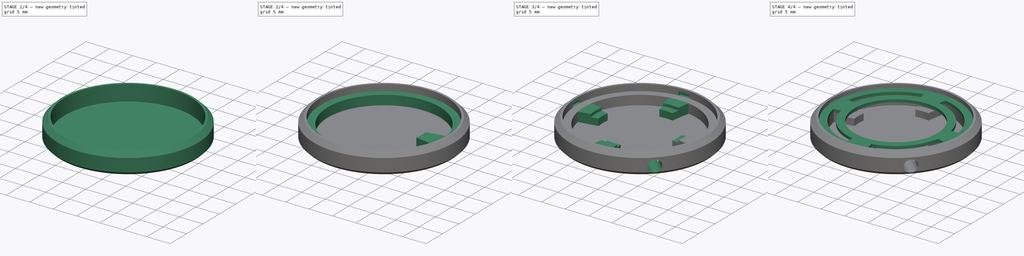
[diagram: build sequence overview — one tinted view per stage of 4, left to right]
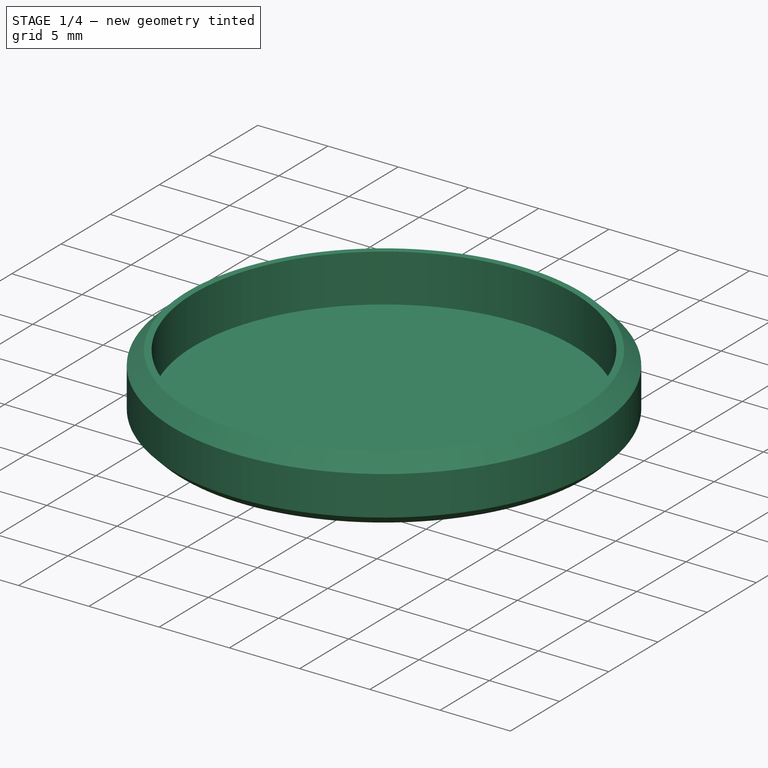
[diagram: stage 1 of 4 — iso view after this stage's code; geometry added in this stage tinted green]
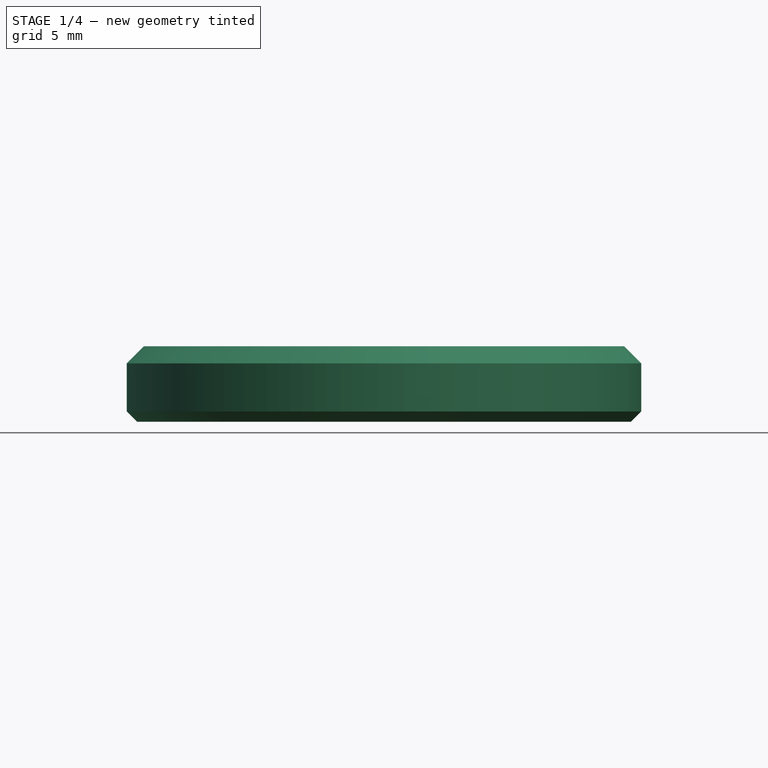
[diagram: stage 1 of 4 — front view after this stage's code; geometry added in this stage tinted green]
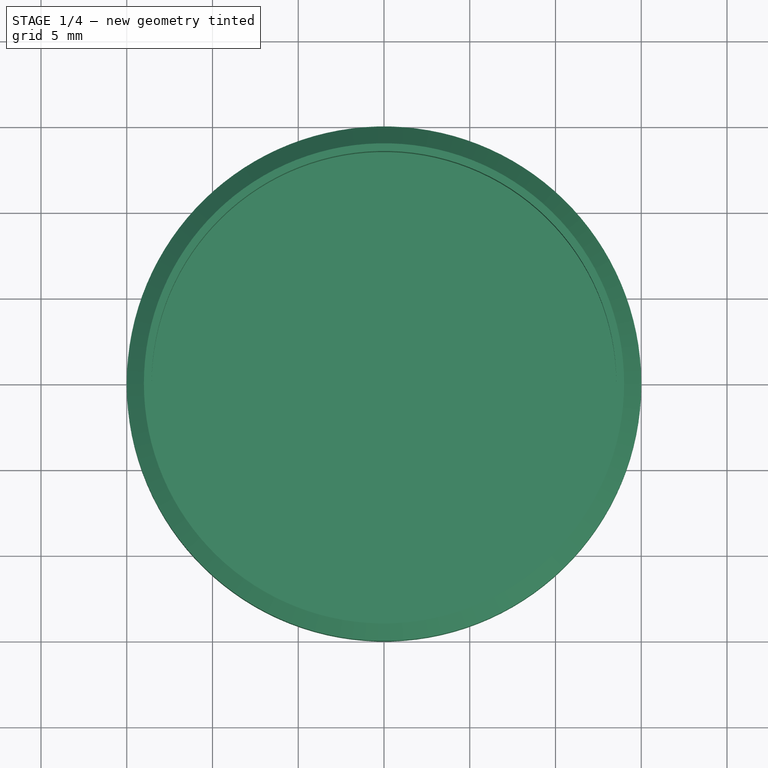
[diagram: stage 1 of 4 — top view after this stage's code; geometry added in this stage tinted green]
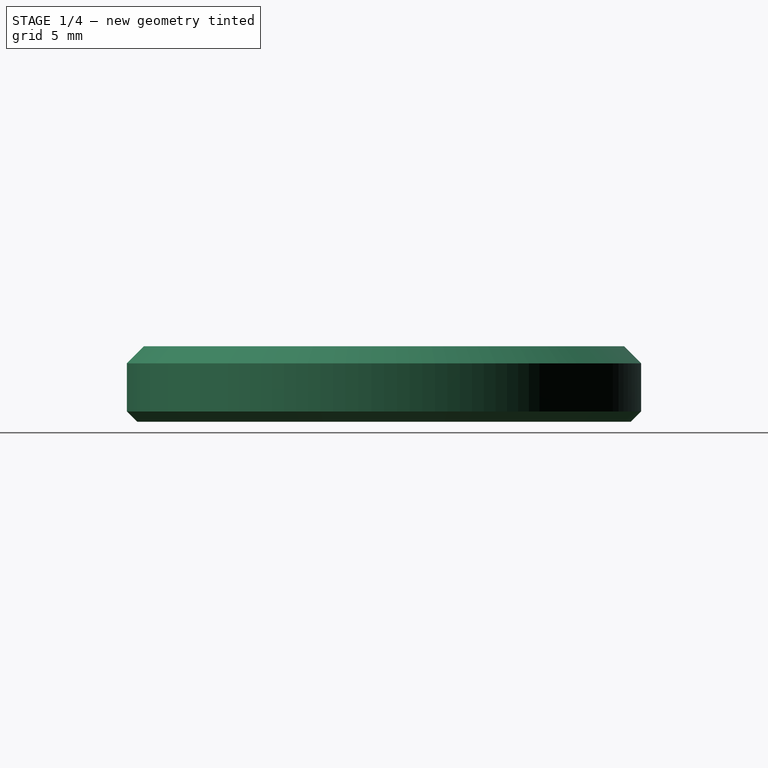
[diagram: stage 1 of 4 — right view after this stage's code; geometry added in this stage tinted green]
FCSTD DOCUMENT  (FreeCAD 0.20R29177 +426 (Git))
Label: TouchButtonV2
License: All rights reserved
LicenseURL: http://en.wikipedia.org/wiki/All_rights_reserved
objects: Sketcher::SketchObject×9, PartDesign::Pad×6, PartDesign::Chamfer×3, PartDesign::Pocket×3, PartDesign::PolarPattern×2, PartDesign::Body×2, App::Part×2
note: 37 computed .brp shape members not serialized (recipe doc carries the construction recipe); baked Part::Feature solids carry a one-line shape summary decoded from their .brp

FEATURE [Sketcher::SketchObject] Sketch001
  FullyConstrained = true
  MapMode = 5
  Support = -> [XY_Plane001]
  sketch-geometry (5):
    g0: LineSegment StartX=14 StartY=-1 StartZ=0 EndX=14 EndY=1 EndZ=0
    g1: LineSegment StartX=14 StartY=1 StartZ=0 EndX=13 EndY=1 EndZ=0
    g2: LineSegment StartX=13 StartY=1 StartZ=0 EndX=13 EndY=-1 EndZ=0
    g3: LineSegment StartX=13 StartY=-1 StartZ=0 EndX=14 EndY=-1 EndZ=0
    g4: GeomPoint X=13.5 Y=0 Z=0
  constraints (13):
    c: Coincident(g0,g1)
    c: Coincident(g1,g2)
    c: Coincident(g2,g3)
    c: Coincident(g3,g0)
    c: Horizontal(g1)
    c: Horizontal(g3)
    c: Vertical(g0)
    c: Vertical(g2)
    c: Symmetric(g1,g0,g4)
    c: PointOnObject(g4,g-1)
    c: DistanceX(g-1,g4) = 13.5
    c: DistanceX(g3,g3) = 1
    c: DistanceY(g2,g2) = 2
FEATURE [Sketcher::SketchObject] Sketch002
  FullyConstrained = true
  MapMode = 5
  Support = -> [XY_Plane003]
  sketch-geometry (2):
    g0: Circle CenterX=0 CenterY=0 CenterZ=0 NormalX=0 NormalY=0 NormalZ=1 AngleXU=0 Radius=15
    g1: Circle CenterX=0 CenterY=0 CenterZ=0 NormalX=0 NormalY=0 NormalZ=1 AngleXU=0 Radius=13.55
  constraints (4):
    c: Coincident(g0,g-1)
    c: Radius(g0) = 15
    c: Coincident(g1,g0)
    c: Radius(g1) = 13.55
FEATURE [PartDesign::Pad] Pad002
  Direction = (0,0,1)
  Length = 3
  Length2 = 1.4
  Profile = -> Sketch002
  ReferenceAxis = -> Sketch002 [N_Axis]
  Reversed = true
  Type = 4
FEATURE [PartDesign::Body] Body
  Group = -> [Sketch,Pad,Pad004,Sketch001,Chamfer,PolarPattern]
  Origin = -> Origin001
  Placement = pos=(0,0,0.4) rot=(0,0,1;0rad)
  Tip = -> PolarPattern
FEATURE [App::Part] Part  label="top"
  Group = -> [Body]
  Origin = -> Origin
FEATURE [Sketcher::SketchObject] Sketch004
  FullyConstrained = true
  MapMode = 5
  Support = -> [XY_Plane003]
  sketch-geometry (5):
    g0: LineSegment StartX=14.05 StartY=-1.2 StartZ=0 EndX=14.05 EndY=1.2 EndZ=0
    g1: LineSegment StartX=14.05 StartY=1.2 StartZ=0 EndX=12.95 EndY=1.2 EndZ=0
    g2: LineSegment StartX=12.95 StartY=1.2 StartZ=0 EndX=12.95 EndY=-1.2 EndZ=0
    g3: LineSegment StartX=12.95 StartY=-1.2 StartZ=0 EndX=14.05 EndY=-1.2 EndZ=0
    g4: GeomPoint X=13.5 Y=0 Z=0
  constraints (13):
    c: Coincident(g0,g1)
    c: Coincident(g1,g2)
    c: Coincident(g2,g3)
    c: Coincident(g3,g0)
    c: Horizontal(g1)
    c: Horizontal(g3)
    c: Vertical(g0)
    c: Vertical(g2)
    c: Symmetric(g1,g0,g4)
    c: PointOnObject(g4,g-1)
    c: DistanceX(g-1,g4) = 13.5
    c: DistanceX(g3,g3) = 1.1
    c: DistanceY(g2,g2) = 2.4
FEATURE [Sketcher::SketchObject] Sketch005
  FullyConstrained = true
  MapMode = 5
  Support = -> [XY_Plane003]
  sketch-geometry (2):
    g0: Circle CenterX=0 CenterY=0 CenterZ=0 NormalX=0 NormalY=0 NormalZ=1 AngleXU=0 Radius=12
    g1: Circle CenterX=0 CenterY=0 CenterZ=0 NormalX=0 NormalY=0 NormalZ=1 AngleXU=0 Radius=13.55
  constraints (4):
    c: Coincident(g0,g-1)
    c: Radius(g0) = 12
    c: Coincident(g1,g0)
    c: Radius(g1) = 13.55
FEATURE [PartDesign::Chamfer] Chamfer001
  Angle = 45
  Base = -> Pad002 [Edge3]
  BaseFeature = -> Pad002
  ChamferType = 0
  FlipDirection = false
  Size = 1
  Size2 = 1
  SupportTransform = false
  UseAllEdges = false
FEATURE [Sketcher::SketchObject] Sketch006
  FullyConstrained = true
  MapMode = 5
  Support = -> [XY_Plane003]
  sketch-geometry (6):
    g0: ArcOfCircle CenterX=0 CenterY=0 CenterZ=0 NormalX=0 NormalY=0 NormalZ=1 AngleXU=0 Radius=12.5 StartAngle=6.10865 EndAngle=6.45772
    g1: ArcOfCircle CenterX=0 CenterY=0 CenterZ=0 NormalX=0 NormalY=0 NormalZ=1 AngleXU=0 Radius=8 StartAngle=6.10865 EndAngle=6.45772
    g2: LineSegment StartX=0 StartY=0 StartZ=0 EndX=12.3101 EndY=2.1706 EndZ=0
    g3: LineSegment StartX=12.3101 StartY=-2.1706 StartZ=0 EndX=0 EndY=0 EndZ=0
    g4: LineSegment StartX=7.87846 StartY=-1.38919 StartZ=0 EndX=12.3101 EndY=-2.1706 EndZ=0
    g5: LineSegment StartX=7.87846 StartY=1.38919 StartZ=0 EndX=12.3101 EndY=2.1706 EndZ=0
  constraints (16):
    c: Coincident(g0,g-1)
    c: Coincident(g1,g0)
    c: Coincident(g2,g0)
    c: Coincident(g2,g0)
    c: PointOnObject(g1,g2)
    c: Coincident(g3,g0)
    c: Coincident(g3,g0)
    c: Symmetric(g0,g0,g-1)
    c: PointOnObject(g1,g3)
    c: Angle(g3,g2) = 0.349066
    c: Radius(g1) = 8
    c: Distance(g1,g0) = 4.5
    c: Coincident(g4,g1)
    c: Coincident(g4,g0)
    c: Coincident(g5,g1)
    c: Coincident(g0,g5)
FEATURE [Sketcher::SketchObject] Sketch007
  FullyConstrained = true
  MapMode = 5
  Support = -> [XY_Plane003]
  sketch-geometry (1):
    g0: Circle CenterX=0 CenterY=0 CenterZ=0 NormalX=0 NormalY=0 NormalZ=1 AngleXU=0 Radius=9.5
  constraints (2):
    c: Coincident(g0,g-1)
    c: Radius(g0) = 9.5
FEATURE [Sketcher::SketchObject] Sketch008
  AttachmentOffset = pos=(11,0,11) rot=(0,1,0;0.785398rad)
  FullyConstrained = true
  MapMode = 5
  Placement = pos=(11,-11,-2.4e-15) rot=(0.862856,0.357407,0.357407;1.71777rad)
  Support = -> [XZ_Plane003]
  sketch-geometry (1):
    g0: Circle CenterX=0 CenterY=-1.3 CenterZ=0 NormalX=0 NormalY=0 NormalZ=1 AngleXU=0 Radius=1.3
  constraints (3):
    c: PointOnObject(g0,g-2)
    c: PointOnObject(g-1,g0)
    c: Radius(g0) = 1.3
FEATURE [PartDesign::Chamfer] Chamfer002
  Angle = 45
  Base = -> Chamfer001 [Edge3]
  BaseFeature = -> Chamfer001
  ChamferType = 0
  FlipDirection = false
  Size = 0.6
  Size2 = 1
  SupportTransform = false
  UseAllEdges = false
FEATURE [PartDesign::Pad] Pad003
  BaseFeature = -> Chamfer002
  Direction = (0,0,1)
  Length = 1
  Length2 = 10
  Profile = -> Sketch003
  ReferenceAxis = -> Sketch003 [N_Axis]
  Type = 0
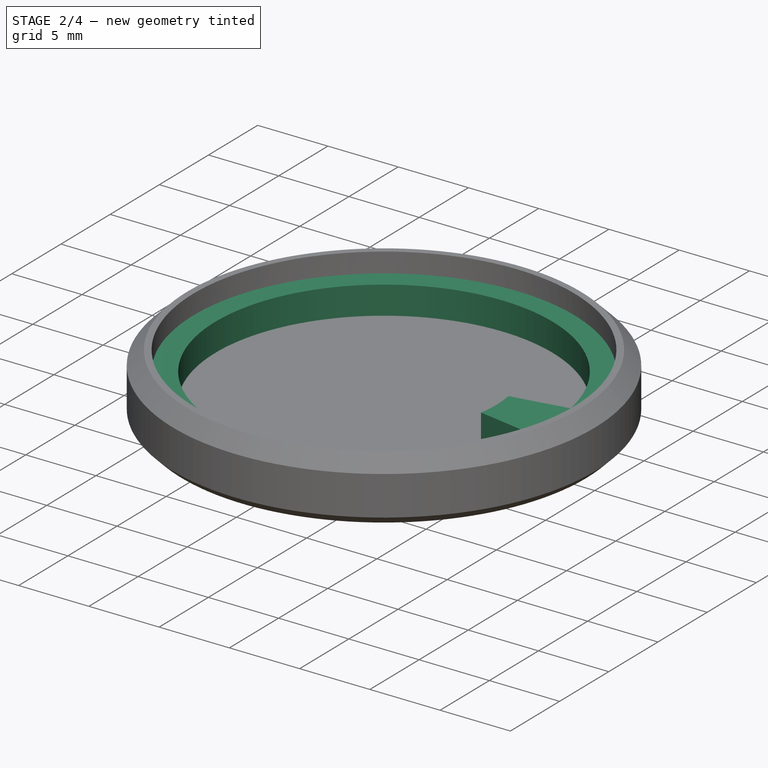
[diagram: stage 2 of 4 — iso view after this stage's code; geometry added in this stage tinted green]
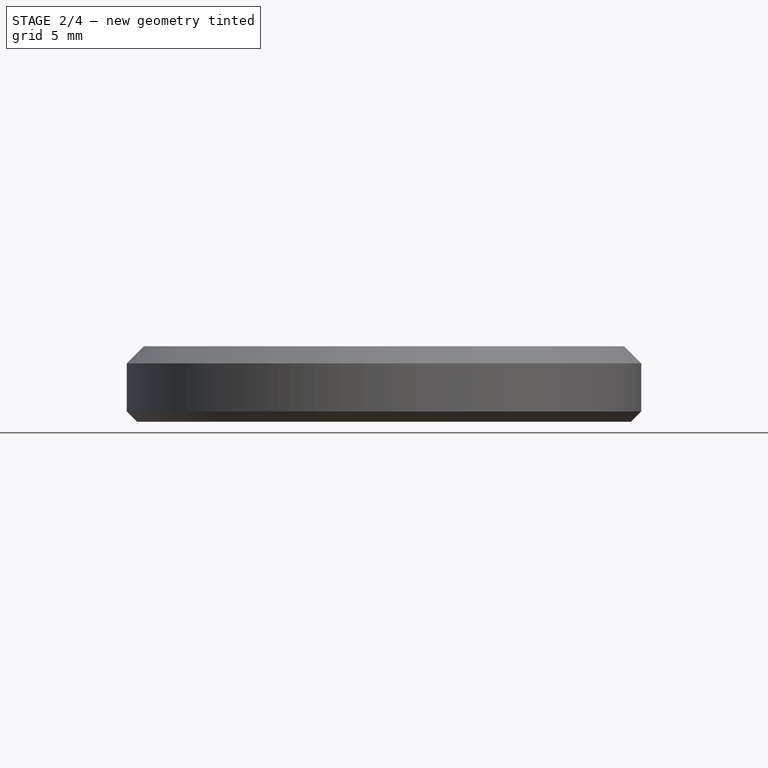
[diagram: stage 2 of 4 — front view after this stage's code; geometry added in this stage tinted green]
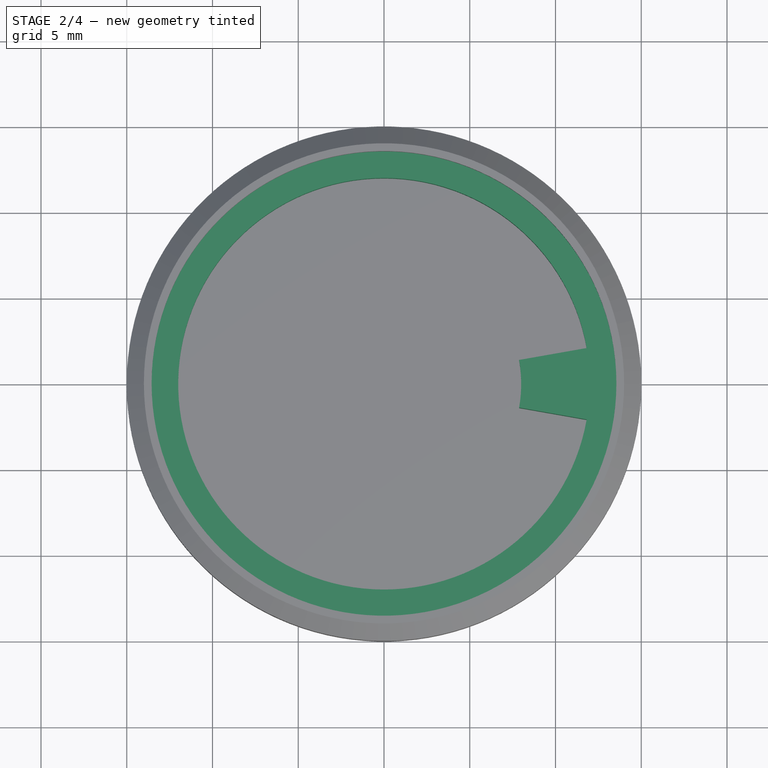
[diagram: stage 2 of 4 — top view after this stage's code; geometry added in this stage tinted green]
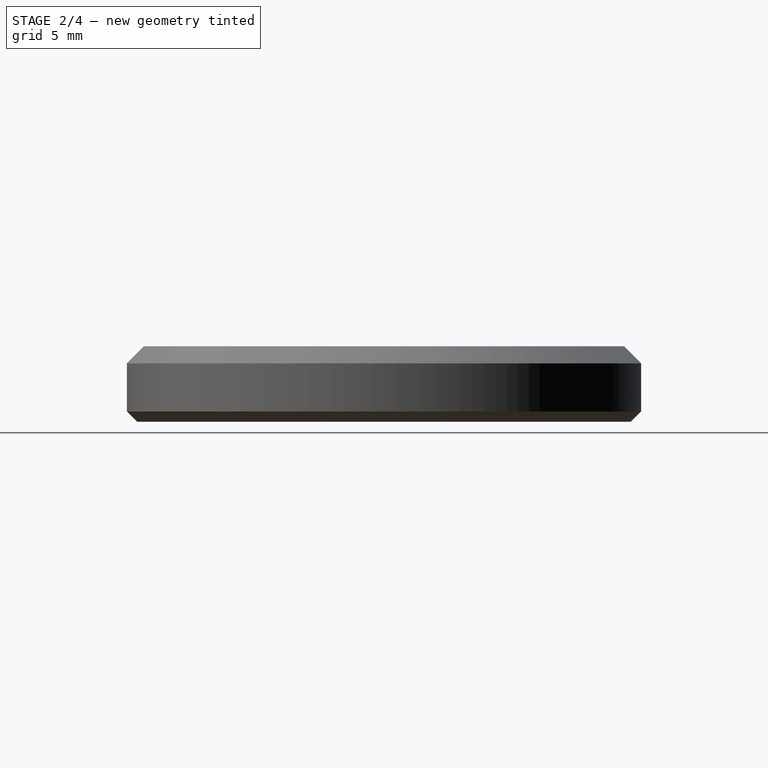
[diagram: stage 2 of 4 — right view after this stage's code; geometry added in this stage tinted green]
FEATURE [PartDesign::Pocket] Pocket
  BaseFeature = -> Pad003
  Direction = (0,0,-1)
  Length = 0.8
  Length2 = 0.2
  Profile = -> Sketch004
  ReferenceAxis = -> Sketch004 [N_Axis]
  Reversed = true
  Type = 0
FEATURE [PartDesign::Pad] Pad005
  BaseFeature = -> Pocket
  Direction = (0,0,1)
  Length = 2
  Length2 = 10
  Profile = -> Sketch005
  ReferenceAxis = -> Sketch005 [N_Axis]
  Reversed = true
  Type = 0
FEATURE [PartDesign::Pad] Pad006
  BaseFeature = -> Pad005
  Direction = (0,0,1)
  Length = 2
  Length2 = 10
  Profile = -> Sketch006
  ReferenceAxis = -> Sketch006 [N_Axis]
  Reversed = true
  Type = 0
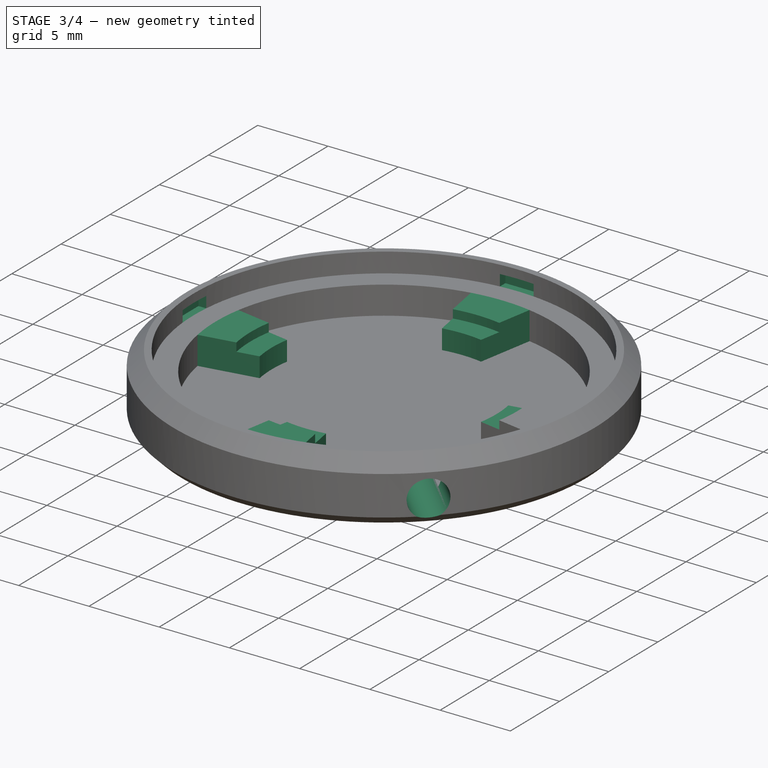
[diagram: stage 3 of 4 — iso view after this stage's code; geometry added in this stage tinted green]
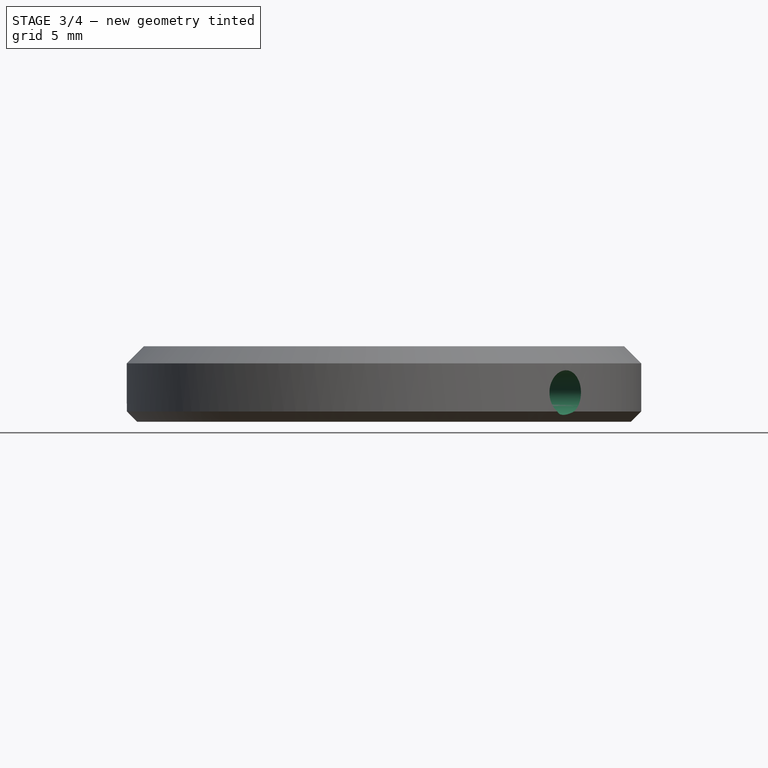
[diagram: stage 3 of 4 — front view after this stage's code; geometry added in this stage tinted green]
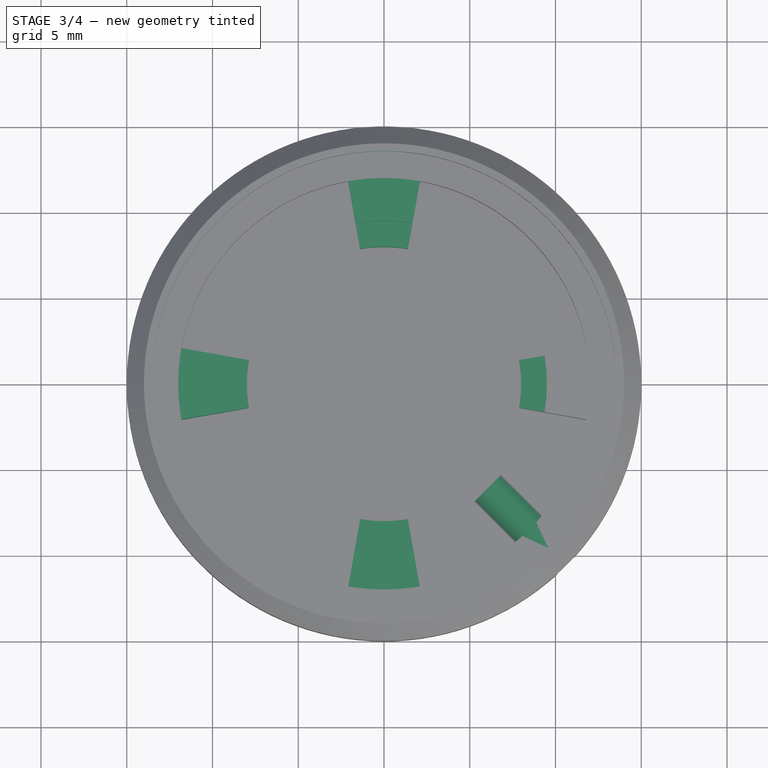
[diagram: stage 3 of 4 — top view after this stage's code; geometry added in this stage tinted green]
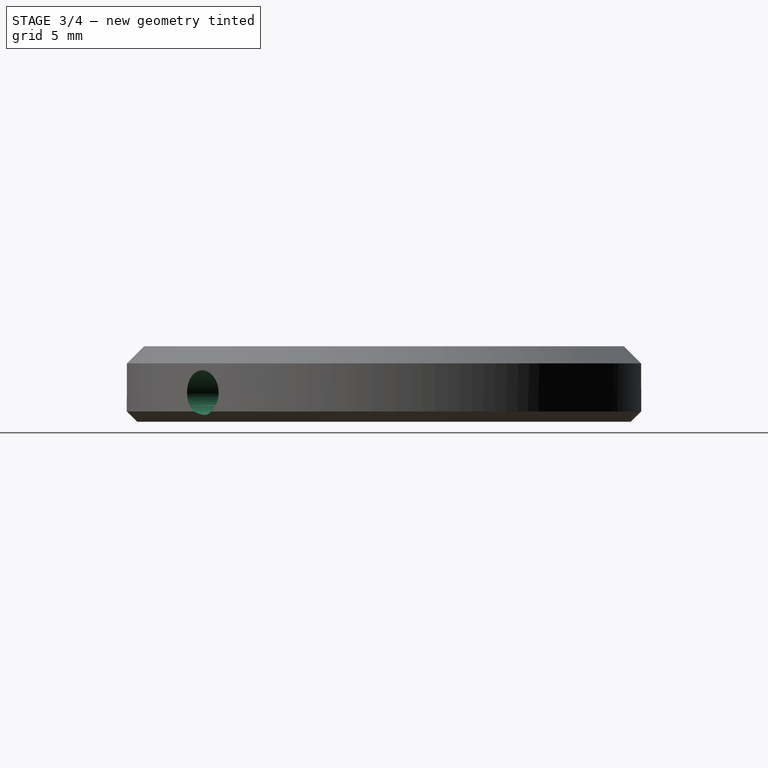
[diagram: stage 3 of 4 — right view after this stage's code; geometry added in this stage tinted green]
FEATURE [PartDesign::PolarPattern] PolarPattern001
  Angle = 360
  Axis = -> Sketch004 [N_Axis]
  BaseFeature = -> Pad006
  Occurrences = 4
  Originals = -> [Pocket,Pad006]
FEATURE [PartDesign::Pocket] Pocket001
  BaseFeature = -> PolarPattern001
  Direction = (0,0,-1)
  Length = 0.6
  Length2 = 5
  Profile = -> Sketch007
  ReferenceAxis = -> Sketch007 [N_Axis]
  Type = 0
FEATURE [PartDesign::Pocket] Pocket002
  BaseFeature = -> Pocket001
  Direction = (-0.707107,0.707107,1e-16)
  Length = 7
  Length2 = 5
  Profile = -> Sketch008
  ReferenceAxis = -> Sketch008 [N_Axis]
  Type = 0
FEATURE [PartDesign::Body] Body001
  Group = -> [Sketch002,Pad002,Chamfer001,Chamfer002,Sketch003,Pad003,Sketch004,Pocket,Sketch005,Pad005,Sketch006,Pad006,PolarPattern001,Sketch007,Pocket001,Sketch008,Pocket002]
  Origin = -> Origin003
  Tip = -> Pocket002
FEATURE [App::Part] Part001  label="bottom"
  Group = -> [Body001]
  Origin = -> Origin002
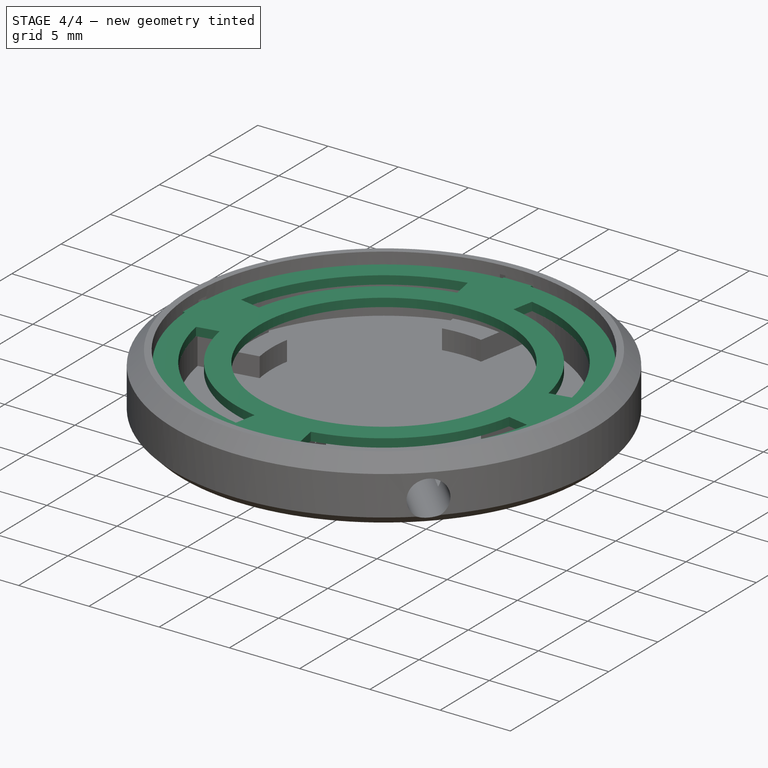
[diagram: stage 4 of 4 — iso view after this stage's code; geometry added in this stage tinted green]
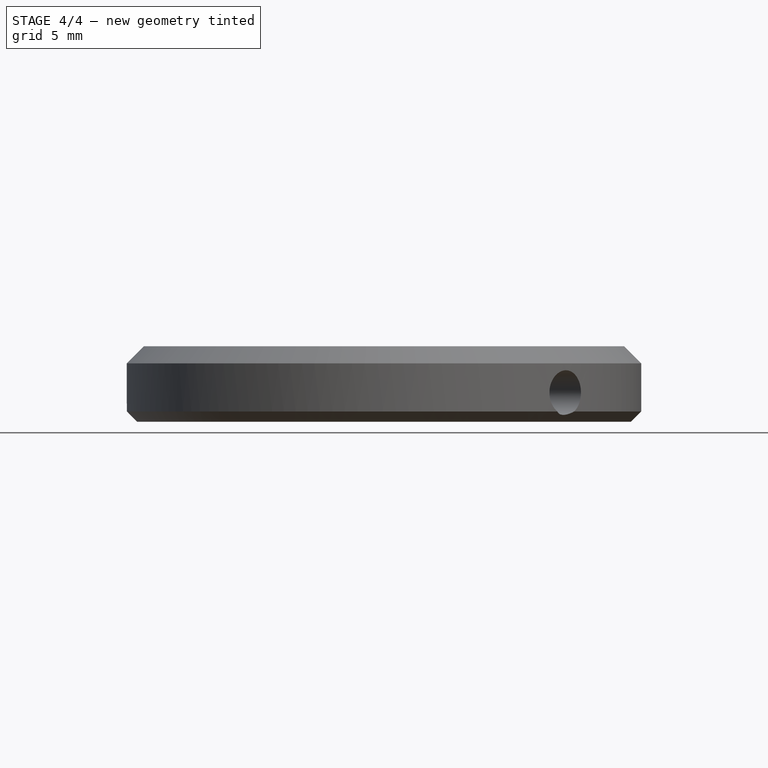
[diagram: stage 4 of 4 — front view after this stage's code; geometry added in this stage tinted green]
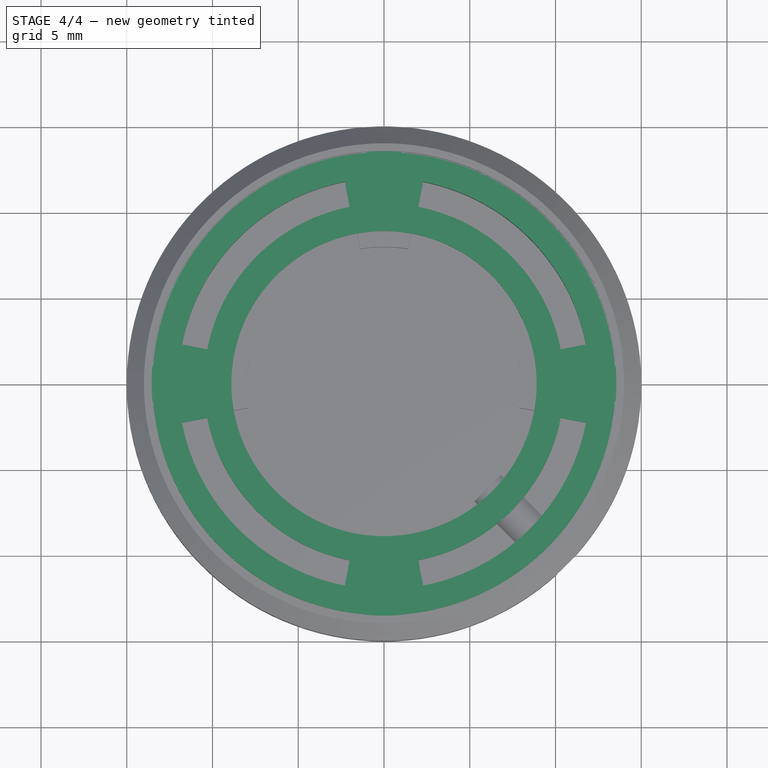
[diagram: stage 4 of 4 — top view after this stage's code; geometry added in this stage tinted green]
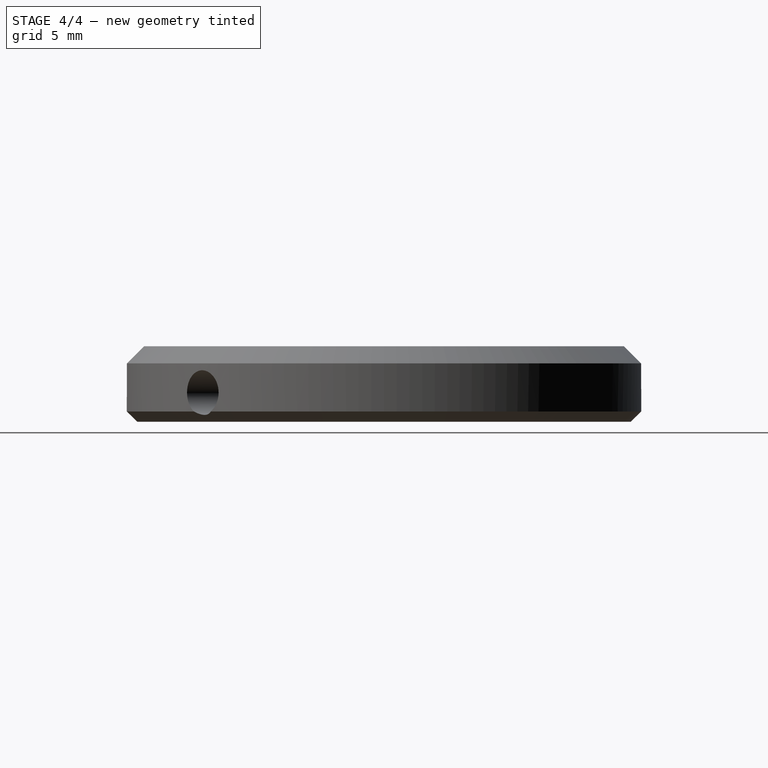
[diagram: stage 4 of 4 — right view after this stage's code; geometry added in this stage tinted green]
FEATURE [Sketcher::SketchObject] Sketch
  FullyConstrained = true
  MapMode = 5
  Support = -> [XY_Plane001]
  sketch-geometry (10):
    g0: ArcOfCircle CenterX=0 CenterY=0 CenterZ=0 NormalX=0 NormalY=0 NormalZ=1 AngleXU=0 Radius=8.9 StartAngle=0 EndAngle=1.5708
    g1: LineSegment StartX=5e-16 StartY=8.9 StartZ=0 EndX=8e-16 EndY=13.5 EndZ=0
    g2: LineSegment StartX=8.9 StartY=0 StartZ=0 EndX=13.5 EndY=0 EndZ=0
    g3: ArcOfCircle CenterX=0 CenterY=0 CenterZ=0 NormalX=0 NormalY=0 NormalZ=1 AngleXU=0 Radius=10.5 StartAngle=0.191647 EndAngle=1.37915
    g4: ArcOfCircle CenterX=0 CenterY=0 CenterZ=0 NormalX=0 NormalY=0 NormalZ=1 AngleXU=0 Radius=12 StartAngle=0.191647 EndAngle=1.37915
    g5: LineSegment StartX=0 StartY=0 StartZ=0 EndX=11.7803 EndY=2.28571 EndZ=0
    g6: LineSegment StartX=0 StartY=0 StartZ=0 EndX=8.48528 EndY=8.48528 EndZ=0
    g7: LineSegment StartX=2 StartY=10.3078 StartZ=0 EndX=2.28571 EndY=11.7803 EndZ=0
    g8: LineSegment StartX=10.3078 StartY=2 StartZ=0 EndX=11.7803 EndY=2.28571 EndZ=0
    g9: ArcOfCircle CenterX=0 CenterY=0 CenterZ=0 NormalX=0 NormalY=0 NormalZ=1 AngleXU=0 Radius=13.5 StartAngle=0 EndAngle=1.5708
  constraints (29):
    c: Coincident(g0,g-1)
    c: PointOnObject(g0,g-2)
    c: PointOnObject(g0,g-1)
    c: PointOnObject(g1,g-2)
    c: Coincident(g0,g1)
    c: Coincident(g2,g0)
    c: PointOnObject(g2,g-1)
    c: Coincident(g3,g0)
    c: Coincident(g4,g0)
    c: Coincident(g5,g0)
    c: Coincident(g5,g4)
    c: PointOnObject(g3,g5)
    c: Radius(g0) = 8.9
    c: Radius(g3) = 10.5
    c: Radius(g4) = 12
    c: Coincident(g6,g0)
    c: PointOnObject(g6,g4)
    c: Angle(g-1,g6) = 0.785398
    c: Symmetric(g3,g3,g6)
    c: Symmetric(g4,g4,g6)
    c: Coincident(g7,g3)
    c: Coincident(g7,g4)
    c: Coincident(g8,g3)
    c: Coincident(g8,g4)
    c: DistanceY(g0,g3) = 2
    c: Coincident(g9,g0)
    c: Coincident(g9,g2)
    c: Coincident(g9,g1)
    c: Radius(g9) = 13.5
FEATURE [PartDesign::Pad] Pad
  Direction = (0,0,1)
  Length = 0.6
  Length2 = 6.8
  Profile = -> Sketch
  ReferenceAxis = -> Sketch [N_Axis]
  Type = 0
FEATURE [Sketcher::SketchObject] Sketch003
  AttachmentOffset = pos=(0,0,-3) rot=(0,0,1;0rad)
  FullyConstrained = true
  MapMode = 5
  Placement = pos=(0,0,-3) rot=(0,0,1;0rad)
  Support = -> [XY_Plane003]
  sketch-geometry (1):
    g0: Circle CenterX=0 CenterY=0 CenterZ=0 NormalX=0 NormalY=0 NormalZ=1 AngleXU=0 Radius=13.55
  constraints (2):
    c: Radius(g0) = 13.55
    c: Coincident(g0,g-1)
FEATURE [PartDesign::Pad] Pad004
  BaseFeature = -> Pad
  Direction = (0,0,1)
  Length = 0.6
  Length2 = 10
  Profile = -> Sketch001
  ReferenceAxis = -> Sketch001 [N_Axis]
  Type = 0
FEATURE [PartDesign::Chamfer] Chamfer
  Angle = 45
  Base = -> Pad004 [Edge43]
  BaseFeature = -> Pad004
  ChamferType = 0
  FlipDirection = false
  Size = 0.4
  Size2 = 1
  SupportTransform = false
  UseAllEdges = false
FEATURE [PartDesign::PolarPattern] PolarPattern
  Angle = 360
  Axis = -> Sketch [N_Axis]
  BaseFeature = -> Chamfer
  Occurrences = 4
  Originals = -> [Pad,Pad004,Chamfer]
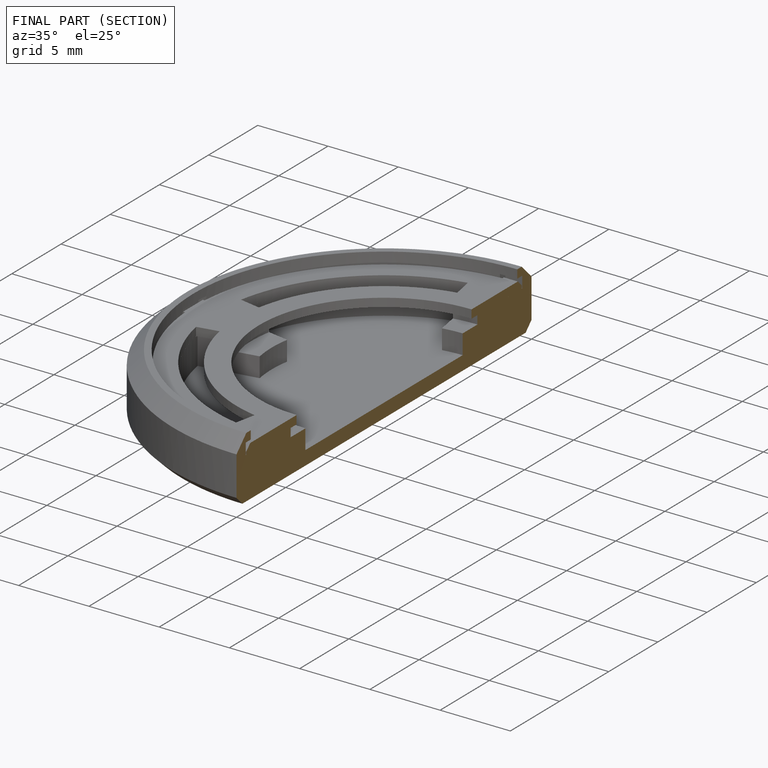
[diagram: finished part — half-section view (interior)]
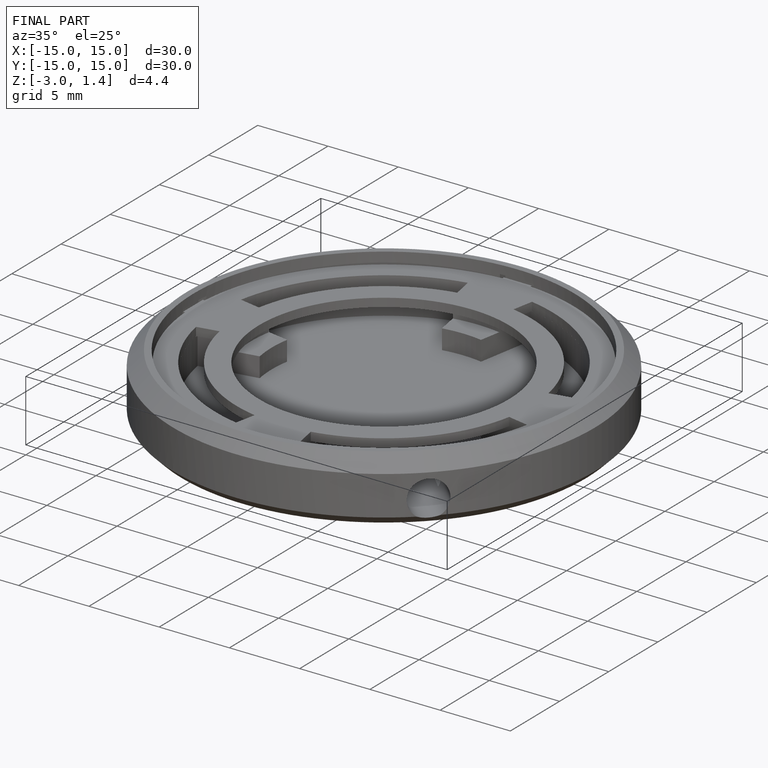
[diagram: finished part — iso view with bounding-box wireframe]
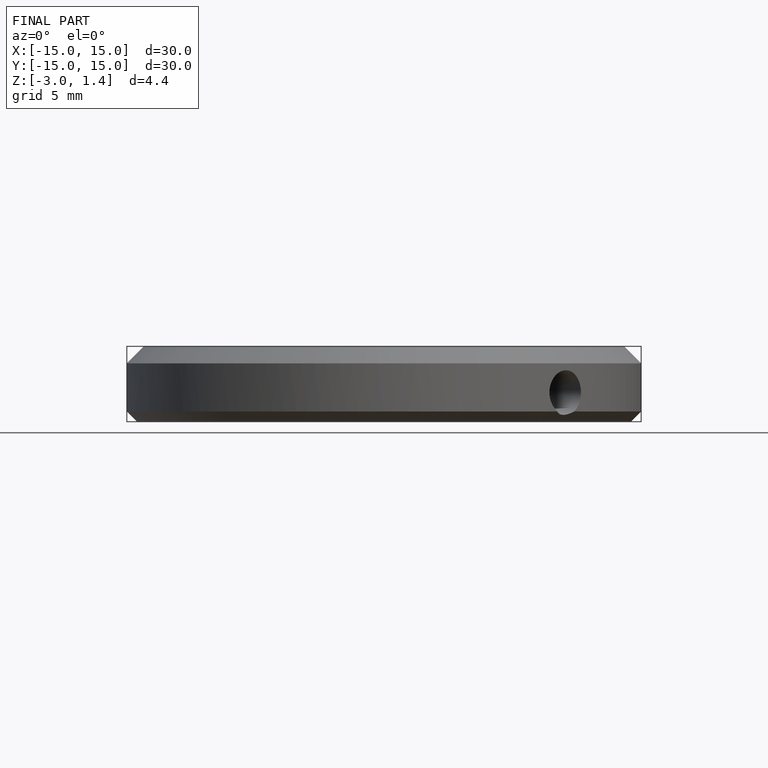
[diagram: finished part — front view with bounding-box wireframe]
